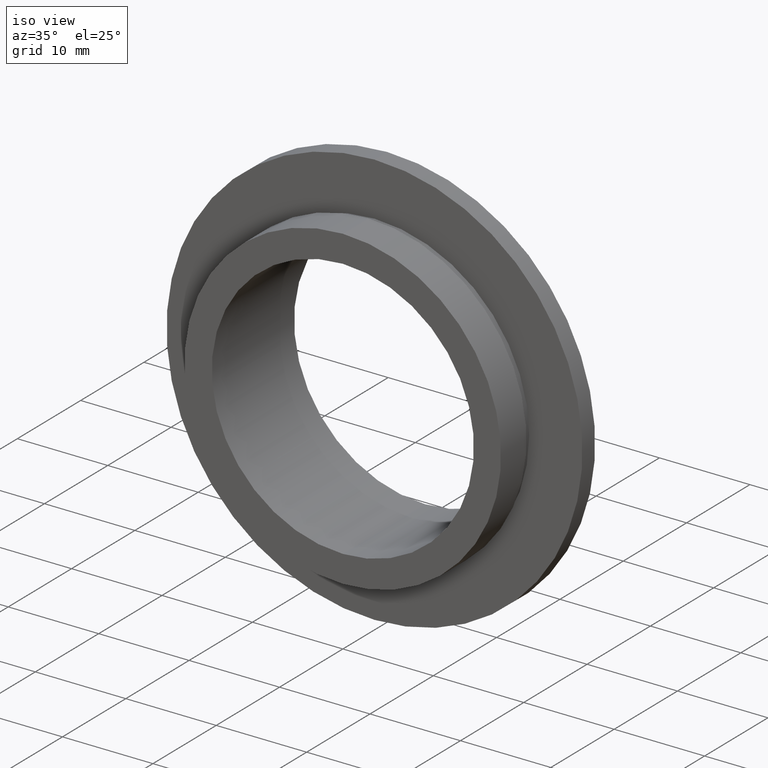
[diagram: clean part render]
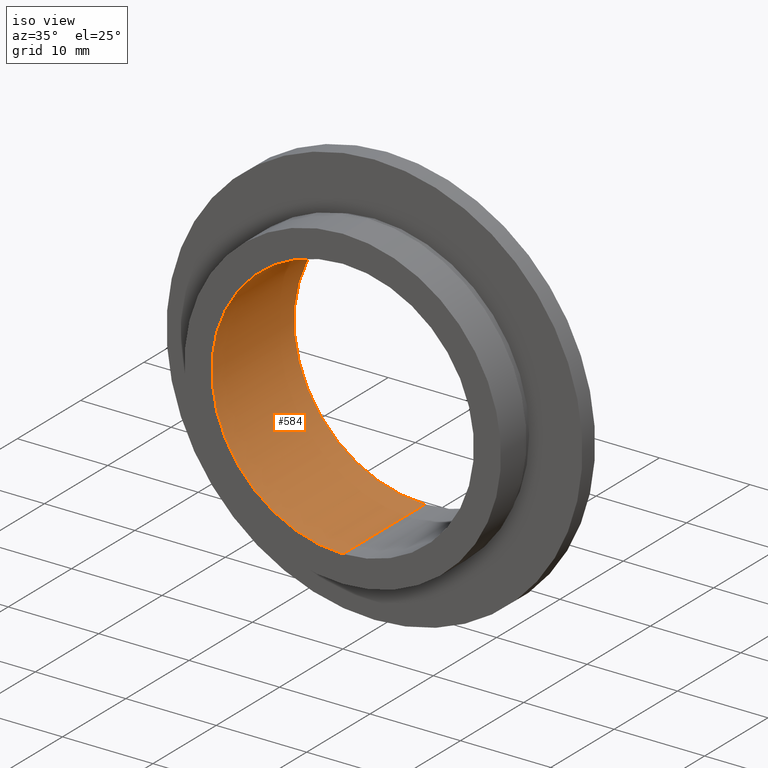
[diagram: same view with one face highlighted and labeled with its STEP entity id]
A machine part, iso view. The second image highlights one B-rep face of the part: STEP entity #584.
In plain terms, the highlighted cylindrical surface (partial cylindrical patch) has radius 14.5 mm, axis along (-0, -1, -0).
Its self-contained STEP definition (entity closure, byte-faithful):
#9 = CARTESIAN_POINT ( 'NONE',  ( 0.0000000000000000000, 13.00000000000000000, -14.49999999999999800 ) ) ;
#16 = VERTEX_POINT ( 'NONE', #9 ) ;
#49 = DIRECTION ( 'NONE',  ( -0.0000000000000000000, -1.000000000000000000, -0.0000000000000000000 ) ) ;
#56 = ORIENTED_EDGE ( 'NONE', *, *, #304, .T. ) ;
#83 = ORIENTED_EDGE ( 'NONE', *, *, #431, .T. ) ;
#84 = CARTESIAN_POINT ( 'NONE',  ( 1.775737858763662000E-015, 0.0000000000000000000, 14.49999999999999800 ) ) ;
#85 = AXIS2_PLACEMENT_3D ( 'NONE', #173, #370, #420 ) ;
#91 = EDGE_LOOP ( 'NONE', ( #415, #56, #83, #598 ) ) ;
#98 = EDGE_CURVE ( 'NONE', #286, #16, #482, .T. ) ;
#103 = CARTESIAN_POINT ( 'NONE',  ( 1.775737858763662400E-015, -1.589908991977631700E-015, 14.50000000000000200 ) ) ;
#129 = CARTESIAN_POINT ( 'NONE',  ( 1.775737858763662000E-015, 13.00000000000000000, 14.49999999999999800 ) ) ;
#132 = LINE ( 'NONE', #202, #382 ) ;
#156 = DIRECTION ( 'NONE',  ( -0.0000000000000000000, -1.000000000000000000, -0.0000000000000000000 ) ) ;
#173 = CARTESIAN_POINT ( 'NONE',  ( 0.0000000000000000000, 13.00000000000000000, 0.0000000000000000000 ) ) ;
#202 = CARTESIAN_POINT ( 'NONE',  ( 0.0000000000000000000, 0.0000000000000000000, -14.49999999999999800 ) ) ;
#213 = CIRCLE ( 'NONE', #539, 14.50000000000000000 ) ;
#236 = CARTESIAN_POINT ( 'NONE',  ( 0.0000000000000000000, -1.589908991977631700E-015, -14.50000000000000000 ) ) ;
#237 = DIRECTION ( 'NONE',  ( 0.0000000000000000000, 0.0000000000000000000, -1.000000000000000000 ) ) ;
#240 = LINE ( 'NONE', #84, #390 ) ;
#269 = CYLINDRICAL_SURFACE ( 'NONE', #399, 14.49999999999999800 ) ;
#286 = VERTEX_POINT ( 'NONE', #129 ) ;
#304 = EDGE_CURVE ( 'NONE', #286, #605, #240, .T. ) ;
#355 = VERTEX_POINT ( 'NONE', #236 ) ;
#370 = DIRECTION ( 'NONE',  ( -0.0000000000000000000, -1.000000000000000000, -0.0000000000000000000 ) ) ;
#382 = VECTOR ( 'NONE', #567, 1000.000000000000000 ) ;
#390 = VECTOR ( 'NONE', #553, 1000.000000000000000 ) ;
#399 = AXIS2_PLACEMENT_3D ( 'NONE', #618, #156, #512 ) ;
#415 = ORIENTED_EDGE ( 'NONE', *, *, #98, .F. ) ;
#420 = DIRECTION ( 'NONE',  ( 0.0000000000000000000, 0.0000000000000000000, -1.000000000000000000 ) ) ;
#431 = EDGE_CURVE ( 'NONE', #605, #355, #213, .T. ) ;
#482 = CIRCLE ( 'NONE', #85, 14.49999999999999800 ) ;
#504 = CARTESIAN_POINT ( 'NONE',  ( 0.0000000000000000000, -1.589908991977631700E-015, 0.0000000000000000000 ) ) ;
#512 = DIRECTION ( 'NONE',  ( 0.0000000000000000000, 0.0000000000000000000, -1.000000000000000000 ) ) ;
#539 = AXIS2_PLACEMENT_3D ( 'NONE', #504, #49, #237 ) ;
#546 = FACE_OUTER_BOUND ( 'NONE', #91, .T. ) ;
#553 = DIRECTION ( 'NONE',  ( -0.0000000000000000000, -1.000000000000000000, -0.0000000000000000000 ) ) ;
#567 = DIRECTION ( 'NONE',  ( -0.0000000000000000000, -1.000000000000000000, -0.0000000000000000000 ) ) ;
#584 = ADVANCED_FACE ( 'NONE', ( #546 ), #269, .F. ) ;
#586 = EDGE_CURVE ( 'NONE', #16, #355, #132, .T. ) ;
#598 = ORIENTED_EDGE ( 'NONE', *, *, #586, .F. ) ;
#605 = VERTEX_POINT ( 'NONE', #103 ) ;
#618 = CARTESIAN_POINT ( 'NONE',  ( 0.0000000000000000000, 0.0000000000000000000, 0.0000000000000000000 ) ) ;